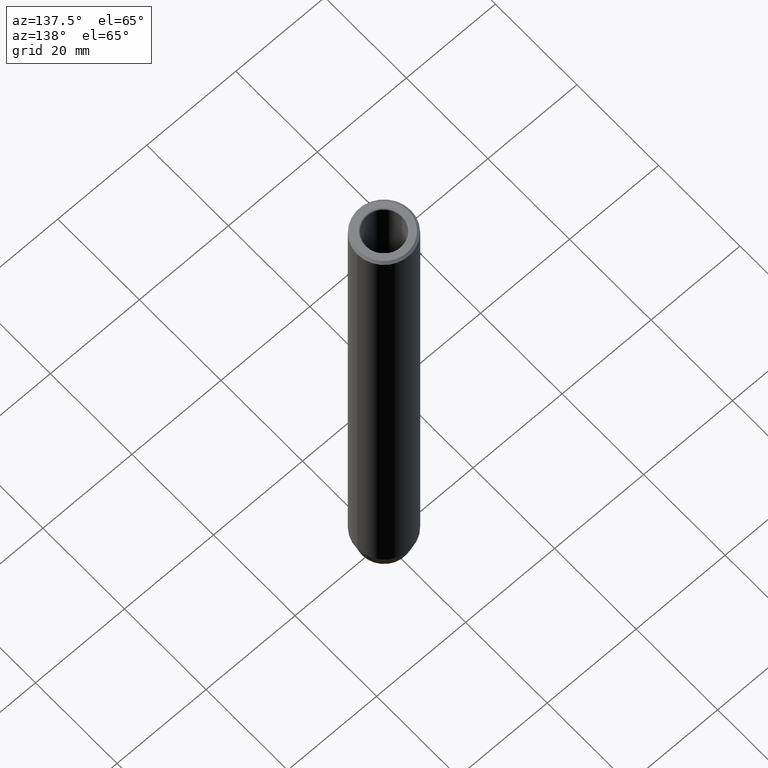
[diagram: clean part render]
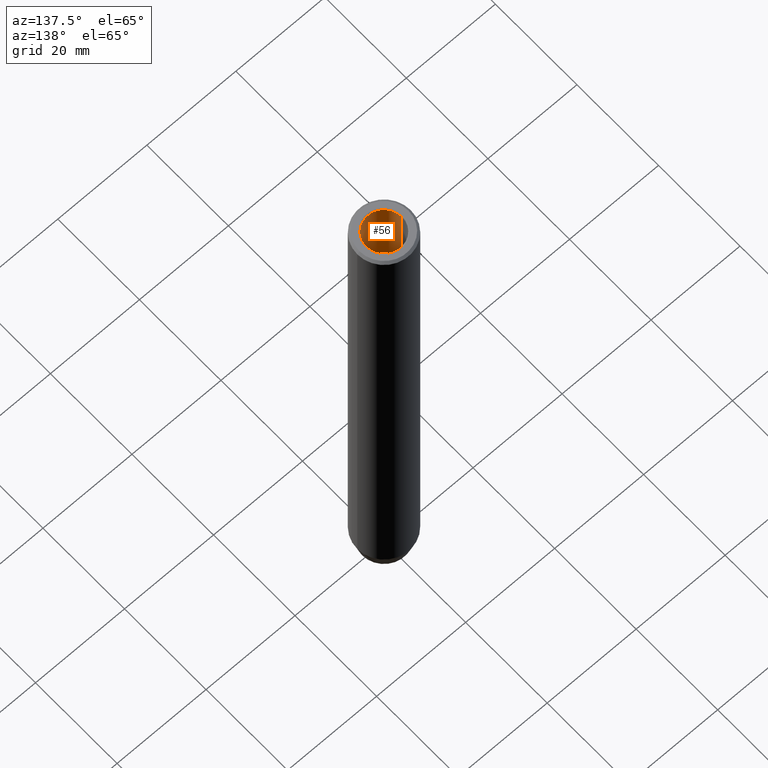
[diagram: same view with one face highlighted and labeled with its STEP entity id]
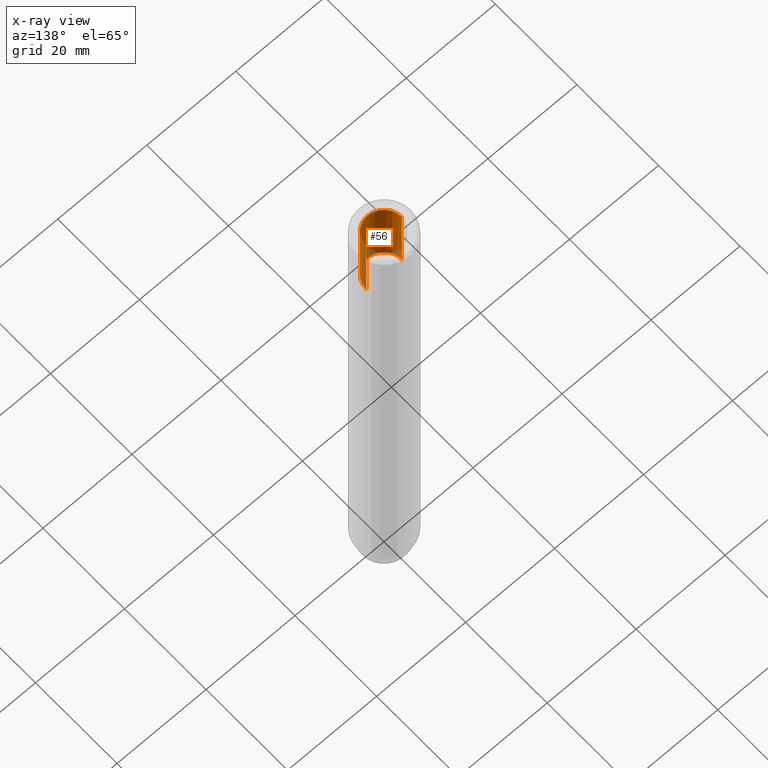
[diagram: x-ray of the same camera — body ghosted, the highlighted face saturated]
A machine part, auxiliary view. The second image highlights one B-rep face of the part: STEP entity #56.
The next image is the same camera in x-ray: the body ghosted, the highlighted face saturated — about 6% of this face is hidden behind the body in this view.
In plain terms, the highlighted cylindrical surface (edge-blend (fillet) strip) has radius 4 mm, axis along (-0, -0, 1).
Its self-contained STEP definition (entity closure, byte-faithful):
#4 = VERTEX_POINT ( 'NONE', #422 ) ;
#8 = ORIENTED_EDGE ( 'NONE', *, *, #506, .F. ) ;
#20 = AXIS2_PLACEMENT_3D ( 'NONE', #135, #609, #568 ) ;
#28 = CARTESIAN_POINT ( 'NONE',  ( 3.999999999999995559, 0.000000000000000000, -17.00000000000000000 ) ) ;
#42 = VECTOR ( 'NONE', #120, 1000.000000000000000 ) ;
#56 = ADVANCED_FACE ( 'NONE', ( #608 ), #417, .F. ) ;
#120 = DIRECTION ( 'NONE',  ( -0.000000000000000000, -0.000000000000000000, 1.000000000000000000 ) ) ;
#121 = DIRECTION ( 'NONE',  ( -0.000000000000000000, -0.000000000000000000, 1.000000000000000000 ) ) ;
#127 = ORIENTED_EDGE ( 'NONE', *, *, #524, .T. ) ;
#135 = CARTESIAN_POINT ( 'NONE',  ( 0.000000000000000000, 0.000000000000000000, -17.00000000000000000 ) ) ;
#138 = EDGE_CURVE ( 'NONE', #431, #4, #520, .T. ) ;
#139 = CARTESIAN_POINT ( 'NONE',  ( -3.999999999999995559, 4.898587196589407898E-16, -17.00000000000000000 ) ) ;
#141 = AXIS2_PLACEMENT_3D ( 'NONE', #559, #121, #177 ) ;
#152 = CIRCLE ( 'NONE', #519, 3.999999999999996447 ) ;
#162 = CIRCLE ( 'NONE', #20, 3.999999999999995559 ) ;
#169 = CARTESIAN_POINT ( 'NONE',  ( -3.999999999999996447, 4.898587196589408884E-16, -0.2999999999999999889 ) ) ;
#177 = DIRECTION ( 'NONE',  ( 1.000000000000000000, 0.000000000000000000, 0.000000000000000000 ) ) ;
#220 = VERTEX_POINT ( 'NONE', #139 ) ;
#242 = DIRECTION ( 'NONE',  ( -0.000000000000000000, -0.000000000000000000, 1.000000000000000000 ) ) ;
#261 = EDGE_LOOP ( 'NONE', ( #8, #569, #127, #445 ) ) ;
#292 = CARTESIAN_POINT ( 'NONE',  ( 3.999999999999996447, 0.000000000000000000, 0.000000000000000000 ) ) ;
#330 = CARTESIAN_POINT ( 'NONE',  ( 0.000000000000000000, 0.000000000000000000, -0.2999999999999999889 ) ) ;
#364 = DIRECTION ( 'NONE',  ( -0.000000000000000000, -0.000000000000000000, 1.000000000000000000 ) ) ;
#397 = VERTEX_POINT ( 'NONE', #169 ) ;
#417 = CYLINDRICAL_SURFACE ( 'NONE', #141, 3.999999999999996447 ) ;
#422 = CARTESIAN_POINT ( 'NONE',  ( 3.999999999999996447, 0.000000000000000000, -0.2999999999999999889 ) ) ;
#431 = VERTEX_POINT ( 'NONE', #28 ) ;
#445 = ORIENTED_EDGE ( 'NONE', *, *, #138, .F. ) ;
#471 = LINE ( 'NONE', #562, #42 ) ;
#506 = EDGE_CURVE ( 'NONE', #220, #431, #162, .T. ) ;
#519 = AXIS2_PLACEMENT_3D ( 'NONE', #330, #364, #523 ) ;
#520 = LINE ( 'NONE', #292, #573 ) ;
#523 = DIRECTION ( 'NONE',  ( 1.000000000000000000, 0.000000000000000000, 0.000000000000000000 ) ) ;
#524 = EDGE_CURVE ( 'NONE', #397, #4, #152, .T. ) ;
#548 = EDGE_CURVE ( 'NONE', #220, #397, #471, .T. ) ;
#559 = CARTESIAN_POINT ( 'NONE',  ( 0.000000000000000000, 0.000000000000000000, 0.000000000000000000 ) ) ;
#562 = CARTESIAN_POINT ( 'NONE',  ( -3.999999999999996447, 4.898587196589408884E-16, 0.000000000000000000 ) ) ;
#568 = DIRECTION ( 'NONE',  ( 1.000000000000000000, 0.000000000000000000, 0.000000000000000000 ) ) ;
#569 = ORIENTED_EDGE ( 'NONE', *, *, #548, .T. ) ;
#573 = VECTOR ( 'NONE', #242, 1000.000000000000000 ) ;
#608 = FACE_OUTER_BOUND ( 'NONE', #261, .T. ) ;
#609 = DIRECTION ( 'NONE',  ( -0.000000000000000000, -0.000000000000000000, 1.000000000000000000 ) ) ;